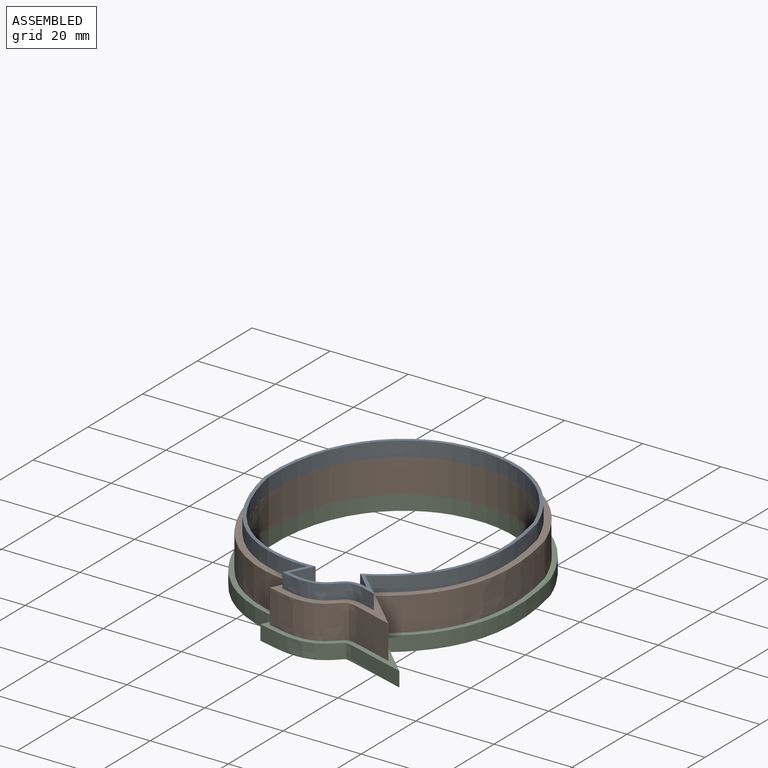
[diagram: assembled view]
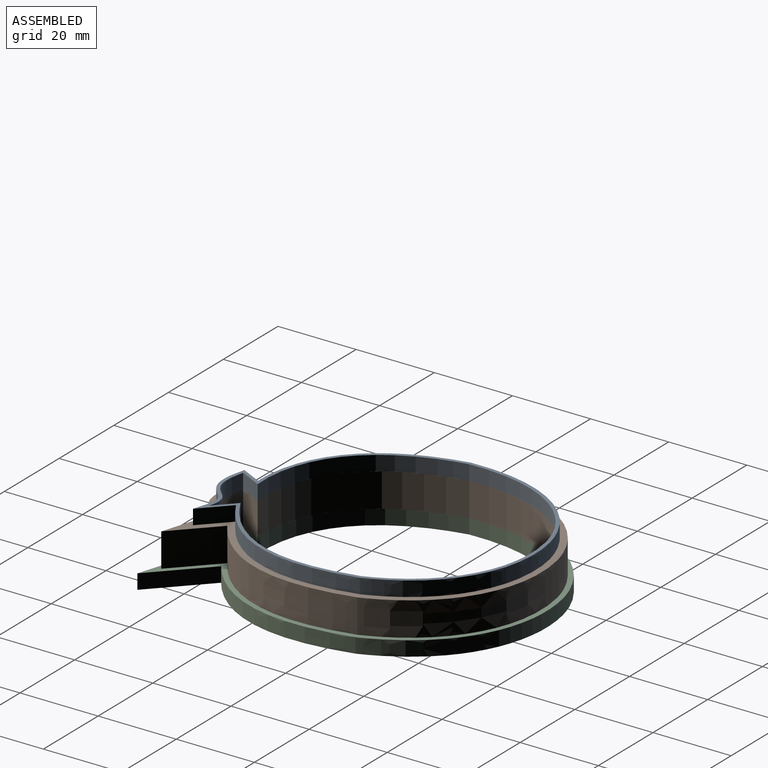
[diagram: assembled view, second angle]
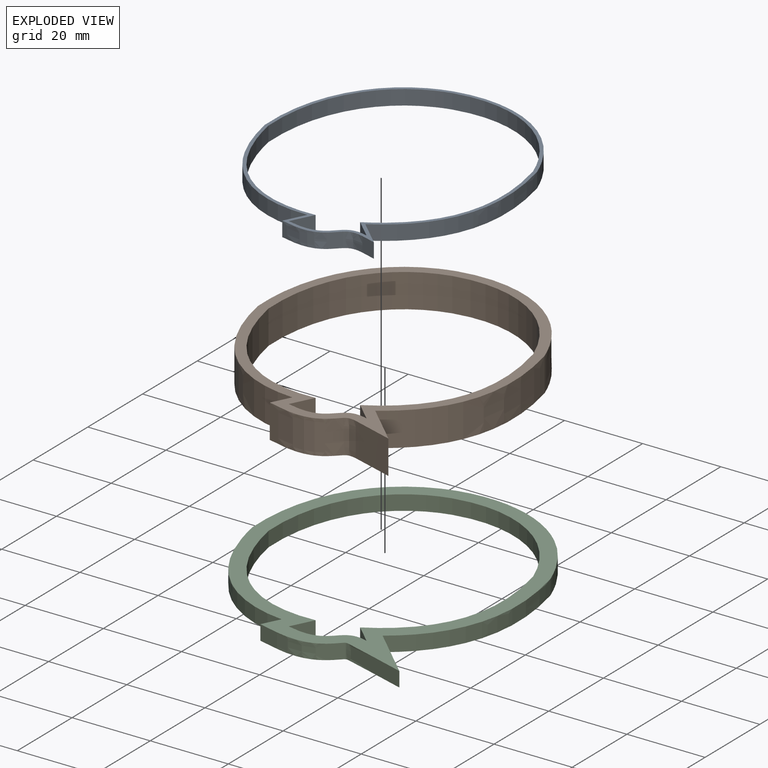
[diagram: exploded view]
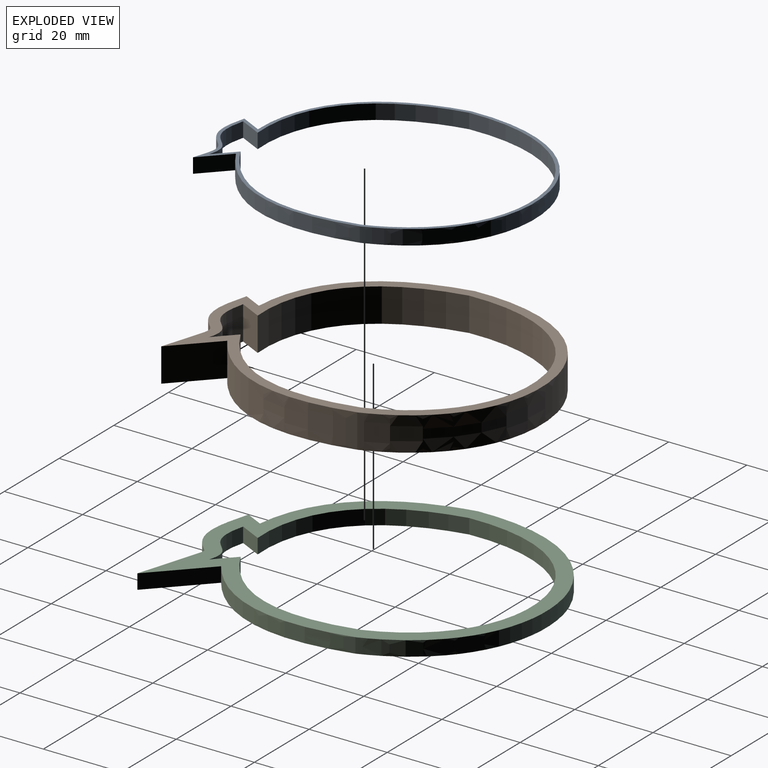
[diagram: exploded view, second angle]
ASSEMBLY  parts=3 mates=2
PART A: 16 faces, bbox 62.9x76.5x3.8 mm
  f0: plane 76.49x62.9mm, normal (0,0,1), area 196.3mm2, adj f2,f3,f4,f5,f6,f7,f8,f9
  f1: plane 76.49x62.9mm, normal (0,0,-1), area 196.3mm2, adj f2,f3,f4,f5,f6,f7,f8,f9
  f2: extruded ~32.95x31.52mm, area 191.1mm2, adj f0,f1,f3,f8
  f3: plane 5.36x3.81mm, normal (-0.89,0.45,0), area 22.8mm2, adj f0,f1,f2,f4
  f4: extruded ~21.92x4.71mm, area 90.1mm2, adj f0,f1,f3,f5
  f5: plane 6.65x6.35mm, normal (0.69,0.72,0), area 35mm2, adj f0,f1,f4,f6
  f6: extruded ~41.9x16.45mm, area 183.8mm2, adj f0,f1,f5,f7
  f7: extruded ~37.19x23.35mm, area 181.8mm2, adj f0,f1,f6,f8
  f8: extruded ~36.23x23mm, area 178.3mm2, adj f0,f1,f2,f7
  f9: extruded ~33.53x30.75mm, area 191.7mm2, adj f0,f1,f10,f15
  f10: plane 5.73x3.81mm, normal (0.89,-0.45,0), area 24.4mm2, adj f0,f1,f9,f11
  f11: extruded ~17.43x4.71mm, area 72.3mm2, adj f0,f1,f10,f12
  f12: plane 4.85x4.63mm, normal (-0.69,-0.72,0), area 25.6mm2, adj f0,f1,f11,f13
  f13: extruded ~41.47x17.03mm, area 183.8mm2, adj f0,f1,f12,f14
  f14: extruded ~36.17x22.74mm, area 176.9mm2, adj f0,f1,f13,f15
  f15: extruded ~35.29x22.33mm, area 173.5mm2, adj f0,f1,f9,f14
PART B: 16 faces, bbox 65.4x78.2x8.6 mm
  f0: plane 78.17x65.42mm, normal (0,0,1), area 599.8mm2, adj f2,f3,f4,f5,f6,f7,f8,f9
  f1: plane 78.17x65.42mm, normal (0,0,-1), area 599.8mm2, adj f2,f3,f4,f5,f6,f7,f8,f9
  f2: extruded ~32.96x31.92mm, area 430.8mm2, adj f0,f1,f3,f8
  f3: plane 8.64x4.81mm, normal (-0.89,0.45,0), area 46.5mm2, adj f0,f1,f2,f4
  f4: extruded ~30.64x8.64mm, area 282.8mm2, adj f0,f1,f3,f5
  f5: plane 10.21x9.75mm, normal (0.69,0.72,0), area 121.9mm2, adj f0,f1,f4,f6
  f6: extruded ~42.69x15.39mm, area 417mm2, adj f0,f1,f5,f7
  f7: extruded ~39.16x24.54mm, area 433.8mm2, adj f0,f1,f6,f8
  f8: extruded ~38.07x24.31mm, area 425.6mm2, adj f0,f1,f2,f7
  f9: extruded ~33.53x30.75mm, area 434.6mm2, adj f0,f1,f10,f15
  f10: plane 8.64x5.73mm, normal (0.89,-0.45,0), area 55.4mm2, adj f0,f1,f9,f11
  f11: extruded ~17.43x8.64mm, area 163.9mm2, adj f0,f1,f10,f12
  f12: plane 8.64x4.85mm, normal (-0.69,-0.72,0), area 57.9mm2, adj f0,f1,f11,f13
  f13: extruded ~41.47x17.03mm, area 416.7mm2, adj f0,f1,f12,f14
  f14: extruded ~36.17x22.74mm, area 401mm2, adj f0,f1,f13,f15
  f15: extruded ~35.29x22.33mm, area 393.3mm2, adj f0,f1,f9,f14
PART C: 16 faces, bbox 67.9x81x3.8 mm
  f0: plane 81.05x67.95mm, normal (0,0,1), area 920mm2, adj f2,f3,f4,f5,f6,f7,f8,f9
  f1: plane 81.05x67.95mm, normal (0,0,-1), area 920mm2, adj f2,f3,f4,f5,f6,f7,f8,f9
  f2: extruded ~33.93x31.2mm, area 189.6mm2, adj f0,f1,f3,f8
  f3: plane 4.53x3.81mm, normal (-0.89,0.45,0), area 19.3mm2, adj f0,f1,f2,f4
  f4: extruded ~37.24x5.05mm, area 150mm2, adj f0,f1,f3,f5
  f5: plane 12.96x12.37mm, normal (0.69,0.72,0), area 68.2mm2, adj f0,f1,f4,f6
  f6: extruded ~43.24x14.64mm, area 184.1mm2, adj f0,f1,f5,f7
  f7: extruded ~40.65x25.43mm, area 198.7mm2, adj f0,f1,f6,f8
  f8: extruded ~39.45x25.31mm, area 194.7mm2, adj f0,f1,f2,f7
  f9: extruded ~33.53x30.75mm, area 191.7mm2, adj f0,f1,f10,f15
  f10: plane 5.73x3.81mm, normal (0.89,-0.45,0), area 24.4mm2, adj f0,f1,f9,f11
  f11: extruded ~17.43x4.71mm, area 72.3mm2, adj f0,f1,f10,f12
  f12: plane 4.85x4.63mm, normal (-0.69,-0.72,0), area 25.6mm2, adj f0,f1,f11,f13
  f13: extruded ~41.47x17.03mm, area 183.8mm2, adj f0,f1,f12,f14
  f14: extruded ~36.17x22.74mm, area 176.9mm2, adj f0,f1,f13,f15
  f15: extruded ~35.29x22.33mm, area 173.5mm2, adj f0,f1,f9,f14
PLACE A t=(70.33,30.37,12.45)mm
PLACE B t=(154.01,13.51,3.81)mm
PLACE C at identity
MATE fastened A.f1 <-> B.f0  axis (0,0,1) through (67.35,-10.02,12.45)mm
MATE fastened B.f1 <-> C.f0  axis (0,0,1) through (67.35,-10.02,3.81)mm
